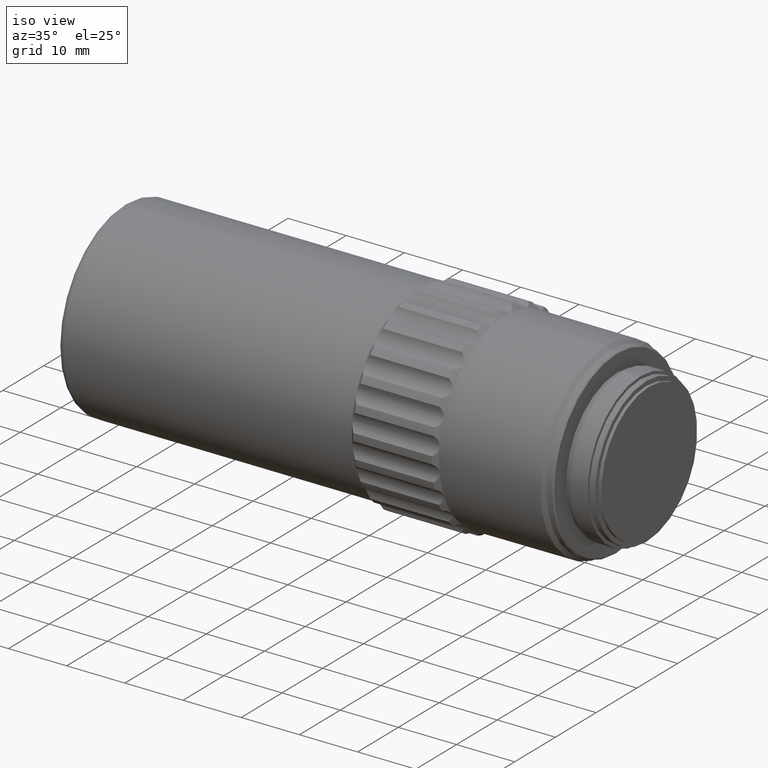
[diagram: clean part render]
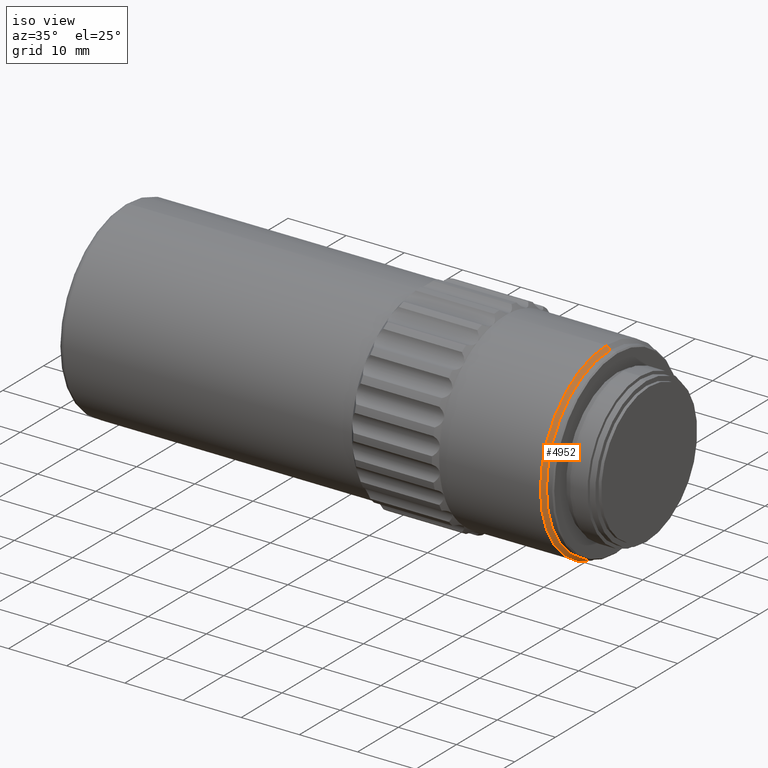
[diagram: same view with one face highlighted and labeled with its STEP entity id]
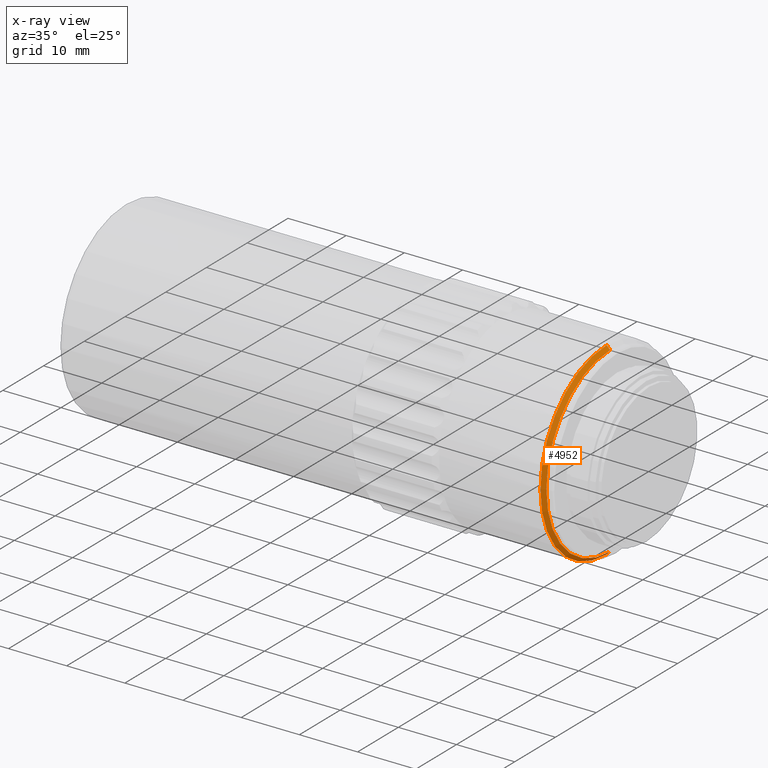
[diagram: x-ray of the same camera — body ghosted, the highlighted face saturated]
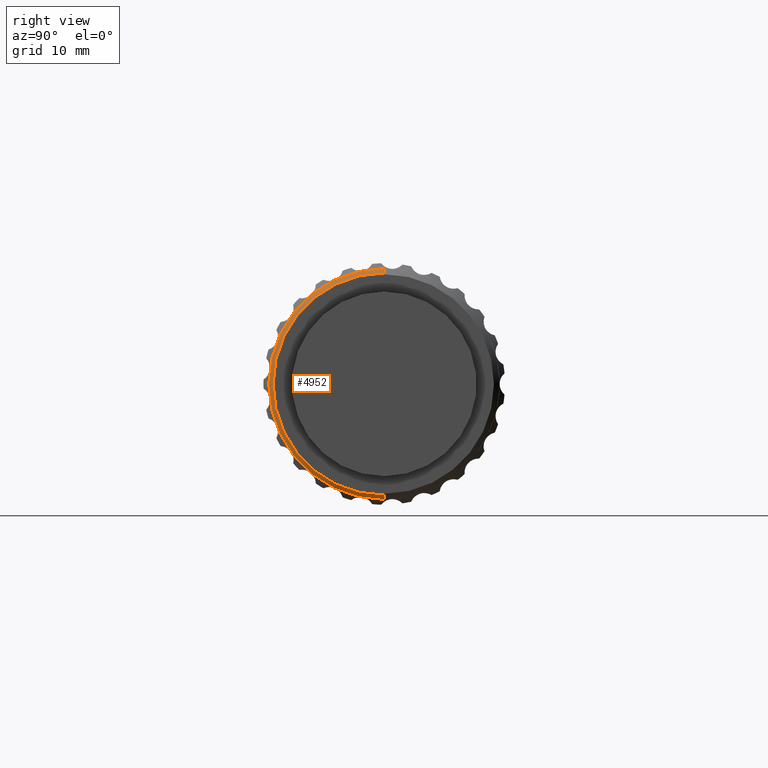
[diagram: same view with one face highlighted and labeled with its STEP entity id]
A machine part, iso view. The second image highlights one B-rep face of the part: STEP entity #4952.
The next image is the same camera in x-ray: the body ghosted, the highlighted face saturated — about 0% of this face is hidden behind the body in this view.
A second angle (right view) of the same face is appended — the face is thin or edge-on in the first view.
In plain terms, the highlighted conical surface has half-angle 45 deg.
Its self-contained STEP definition (entity closure, byte-faithful):
#1458 = AXIS2_PLACEMENT_3D ( 'NONE', #50266, #37528, #42330 ) ;
#2684 = CARTESIAN_POINT ( 'NONE',  ( 83.79999999999999716, 1.990051048614449313E-15, -16.25000000000000000 ) ) ;
#2964 = DIRECTION ( 'NONE',  ( -0.7071067811865516806, 8.659560562354884787E-17, -0.7071067811865434649 ) ) ;
#3011 = EDGE_LOOP ( 'NONE', ( #41159, #27002, #39916, #11973 ) ) ;
#3044 = VECTOR ( 'NONE', #2964, 1000.000000000000000 ) ;
#3508 = CARTESIAN_POINT ( 'NONE',  ( 84.40000000000000568, 0.000000000000000000, 15.65000000000000036 ) ) ;
#4952 = ADVANCED_FACE ( 'NONE', ( #21280 ), #25075, .T. ) ;
#5077 = CARTESIAN_POINT ( 'NONE',  ( 84.40000000000000568, 0.000000000000000000, 0.000000000000000000 ) ) ;
#5673 = CARTESIAN_POINT ( 'NONE',  ( 83.79999999999999716, 0.000000000000000000, 16.25000000000000000 ) ) ;
#6713 = CIRCLE ( 'NONE', #35664, 15.65000000000000036 ) ;
#11102 = VECTOR ( 'NONE', #31399, 1000.000000000000000 ) ;
#11253 = CARTESIAN_POINT ( 'NONE',  ( 83.79999999999999716, 1.990051048614449313E-15, -16.25000000000000000 ) ) ;
#11401 = EDGE_CURVE ( 'NONE', #44374, #27271, #30412, .T. ) ;
#11973 = ORIENTED_EDGE ( 'NONE', *, *, #11401, .F. ) ;
#12657 = CARTESIAN_POINT ( 'NONE',  ( 84.40000000000000568, 1.916572240665607987E-15, -15.65000000000000036 ) ) ;
#12787 = DIRECTION ( 'NONE',  ( -1.000000000000000000, -0.000000000000000000, -0.000000000000000000 ) ) ;
#17972 = EDGE_CURVE ( 'NONE', #51614, #27271, #44446, .T. ) ;
#21280 = FACE_OUTER_BOUND ( 'NONE', #3011, .T. ) ;
#25075 = CONICAL_SURFACE ( 'NONE', #38691, 16.25000000000000000, 0.7853981633974425058 ) ;
#27002 = ORIENTED_EDGE ( 'NONE', *, *, #54096, .T. ) ;
#27271 = VERTEX_POINT ( 'NONE', #5673 ) ;
#29270 = LINE ( 'NONE', #2684, #3044 ) ;
#30412 = CIRCLE ( 'NONE', #1458, 16.25000000000000000 ) ;
#30553 = DIRECTION ( 'NONE',  ( -1.000000000000000000, -0.000000000000000000, -0.000000000000000000 ) ) ;
#31399 = DIRECTION ( 'NONE',  ( -0.7071067811865516806, 0.000000000000000000, 0.7071067811865434649 ) ) ;
#35664 = AXIS2_PLACEMENT_3D ( 'NONE', #5077, #30553, #47840 ) ;
#35941 = CARTESIAN_POINT ( 'NONE',  ( 83.79999999999999716, 0.000000000000000000, 16.25000000000000000 ) ) ;
#37528 = DIRECTION ( 'NONE',  ( -1.000000000000000000, -0.000000000000000000, -0.000000000000000000 ) ) ;
#38691 = AXIS2_PLACEMENT_3D ( 'NONE', #46777, #12787, #47058 ) ;
#39916 = ORIENTED_EDGE ( 'NONE', *, *, #17972, .T. ) ;
#41159 = ORIENTED_EDGE ( 'NONE', *, *, #41879, .F. ) ;
#41879 = EDGE_CURVE ( 'NONE', #46384, #44374, #29270, .T. ) ;
#42330 = DIRECTION ( 'NONE',  ( 0.000000000000000000, 0.000000000000000000, 1.000000000000000000 ) ) ;
#44374 = VERTEX_POINT ( 'NONE', #11253 ) ;
#44446 = LINE ( 'NONE', #35941, #11102 ) ;
#46384 = VERTEX_POINT ( 'NONE', #12657 ) ;
#46777 = CARTESIAN_POINT ( 'NONE',  ( 83.79999999999999716, 0.000000000000000000, 0.000000000000000000 ) ) ;
#47058 = DIRECTION ( 'NONE',  ( 0.000000000000000000, 0.000000000000000000, 1.000000000000000000 ) ) ;
#47840 = DIRECTION ( 'NONE',  ( 0.000000000000000000, 0.000000000000000000, 1.000000000000000000 ) ) ;
#50266 = CARTESIAN_POINT ( 'NONE',  ( 83.79999999999999716, 0.000000000000000000, 0.000000000000000000 ) ) ;
#51614 = VERTEX_POINT ( 'NONE', #3508 ) ;
#54096 = EDGE_CURVE ( 'NONE', #46384, #51614, #6713, .T. ) ;